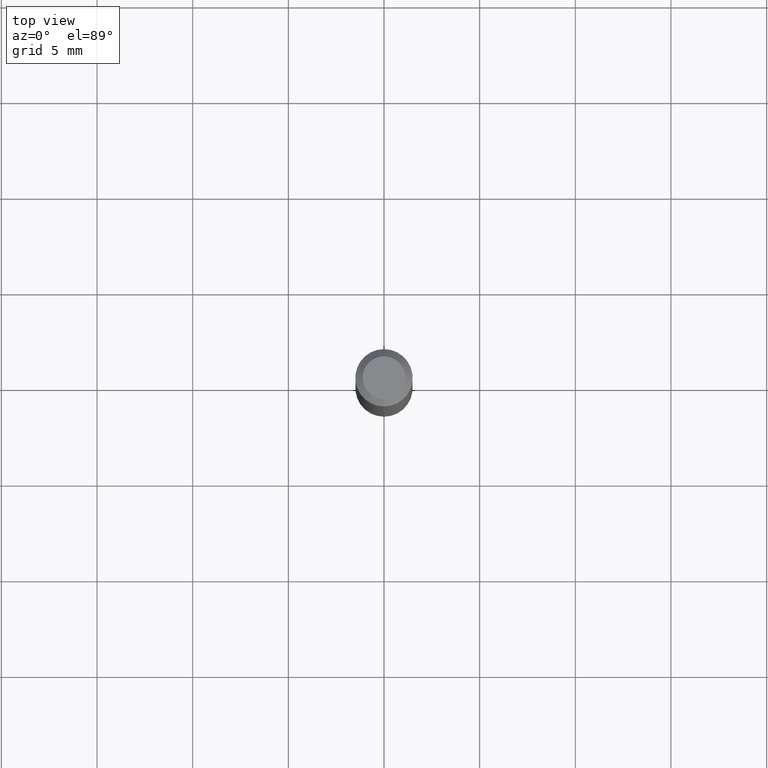
[diagram: clean part render]
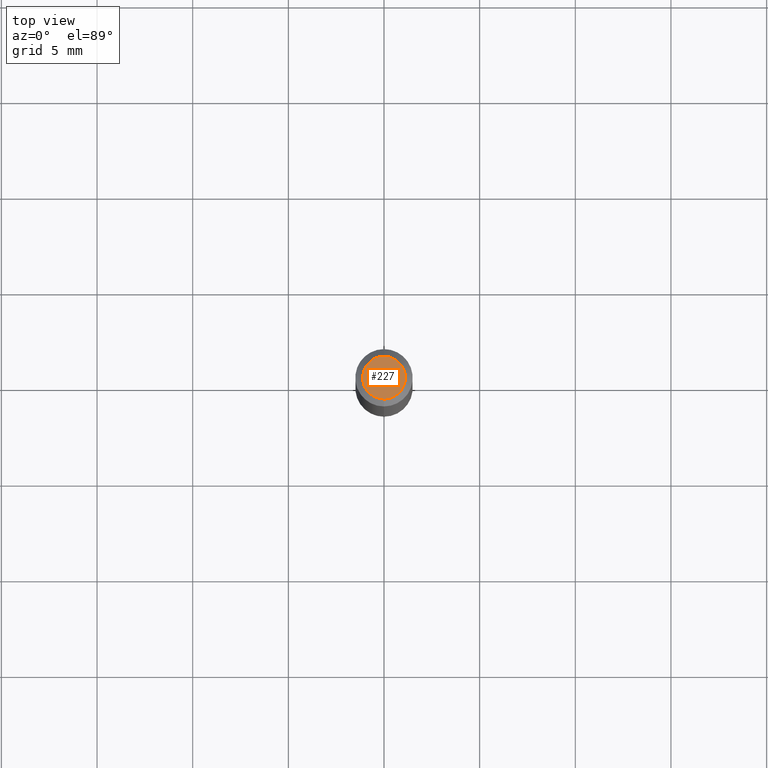
[diagram: same view with one face highlighted and labeled with its STEP entity id]
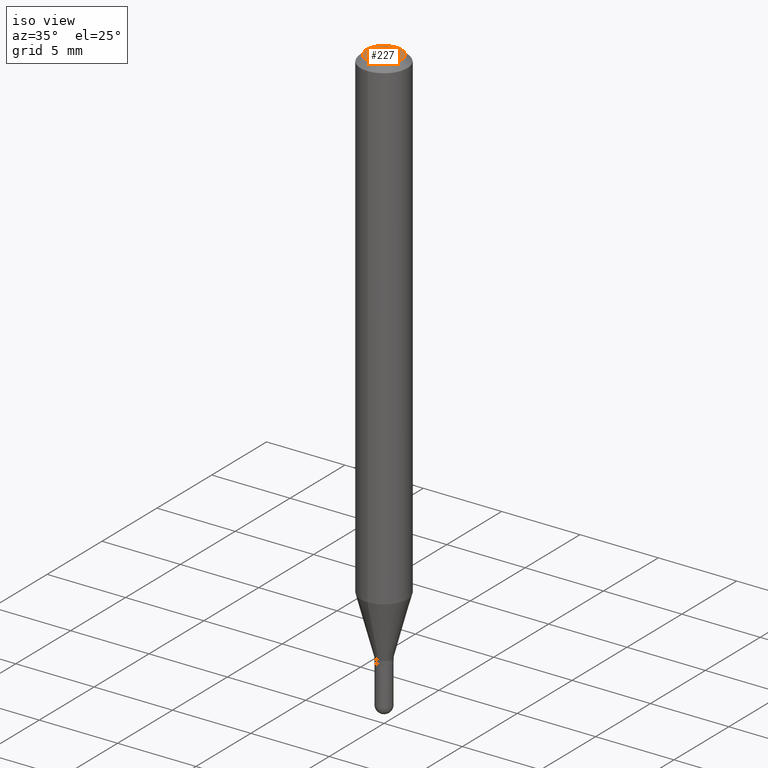
[diagram: same view with one face highlighted and labeled with its STEP entity id]
A machine part, top view. The second image highlights one B-rep face of the part: STEP entity #227.
A second angle (iso view) of the same face is appended — the face is thin or edge-on in the first view.
In plain terms, the highlighted planar face has unit normal (0, -0, -1).
Its self-contained STEP definition (entity closure, byte-faithful):
#11 = DIRECTION ( 'NONE',  ( -6.982962677686265133E-15, -1.000000000000000000, 3.492422932273066336E-15 ) ) ;
#39 = AXIS2_PLACEMENT_3D ( 'NONE', #368, #129, #98 ) ;
#55 = DIRECTION ( 'NONE',  ( -2.444811295007267252E-29, 3.492422932273066730E-15, 1.000000000000000000 ) ) ;
#94 = FACE_OUTER_BOUND ( 'NONE', #476, .T. ) ;
#98 = DIRECTION ( 'NONE',  ( 6.982962677686265922E-15, 1.000000000000000000, -3.492422932273066730E-15 ) ) ;
#129 = DIRECTION ( 'NONE',  ( 2.444811295007266972E-29, -3.492422932273066730E-15, -1.000000000000000000 ) ) ;
#147 = CARTESIAN_POINT ( 'NONE',  ( 3.599717260347271507E-16, 0.04404999999999999888, -1.776619958574267450E-16 ) ) ;
#151 = CIRCLE ( 'NONE', #405, 0.04404999999999999888 ) ;
#167 = CARTESIAN_POINT ( 'NONE',  ( -3.536586717851222218E-16, -0.04404999999999999888, 1.300204644758304070E-16 ) ) ;
#176 = PLANE ( 'NONE',  #39 ) ;
#177 = AXIS2_PLACEMENT_3D ( 'NONE', #261, #55, #258 ) ;
#217 = DIRECTION ( 'NONE',  ( -2.444811295007267252E-29, 3.492422932273066730E-15, 1.000000000000000000 ) ) ;
#227 = ADVANCED_FACE ( 'NONE', ( #94 ), #176, .F. ) ;
#234 = EDGE_CURVE ( 'NONE', #376, #507, #151, .T. ) ;
#258 = DIRECTION ( 'NONE',  ( -6.982962677686265133E-15, -1.000000000000000000, 3.492422932273066336E-15 ) ) ;
#259 = EDGE_CURVE ( 'NONE', #507, #376, #482, .T. ) ;
#261 = CARTESIAN_POINT ( 'NONE',  ( 5.823727701658493380E-46, -8.319218836284696553E-32, -2.382076569079815975E-17 ) ) ;
#286 = ORIENTED_EDGE ( 'NONE', *, *, #259, .T. ) ;
#368 = CARTESIAN_POINT ( 'NONE',  ( 3.075995059520799729E-16, 0.04404999999999999888, -1.657516130120276605E-16 ) ) ;
#373 = CARTESIAN_POINT ( 'NONE',  ( 5.823727701658493380E-46, -8.319218836284696553E-32, -2.382076569079815975E-17 ) ) ;
#376 = VERTEX_POINT ( 'NONE', #147 ) ;
#405 = AXIS2_PLACEMENT_3D ( 'NONE', #373, #217, #11 ) ;
#416 = ORIENTED_EDGE ( 'NONE', *, *, #234, .T. ) ;
#476 = EDGE_LOOP ( 'NONE', ( #416, #286 ) ) ;
#482 = CIRCLE ( 'NONE', #177, 0.04404999999999999888 ) ;
#507 = VERTEX_POINT ( 'NONE', #167 ) ;